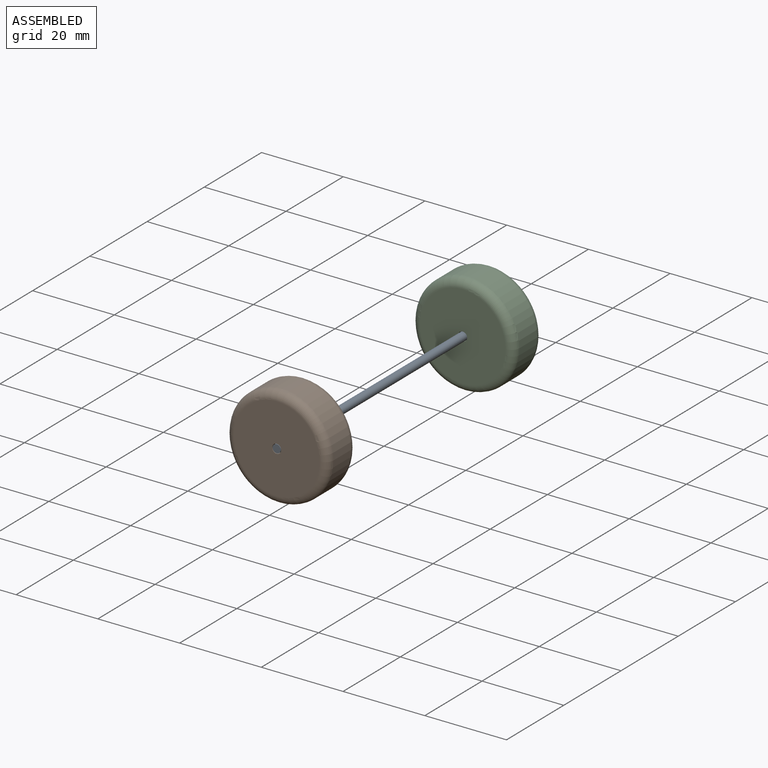
[diagram: assembled view]
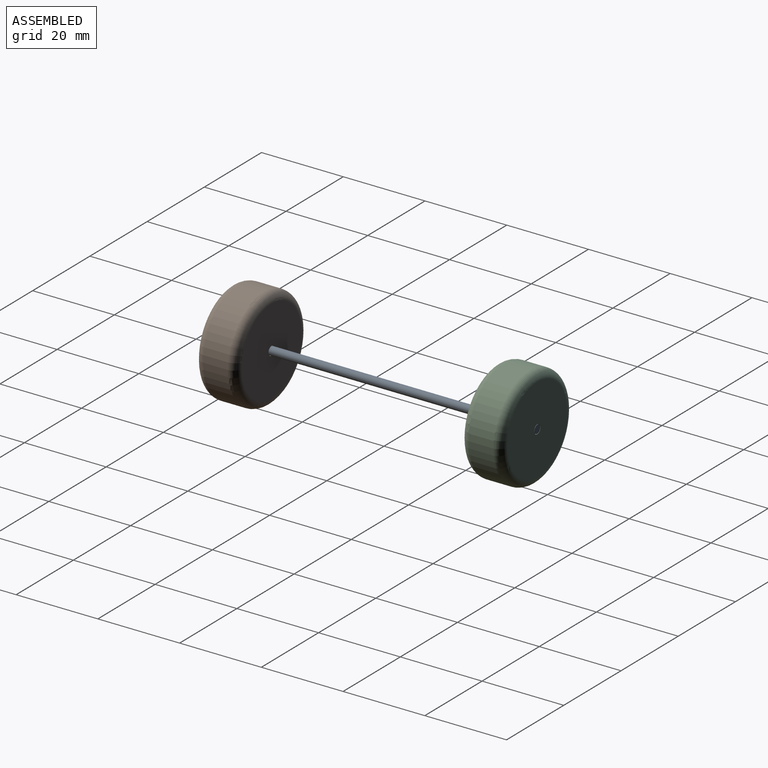
[diagram: assembled view, second angle]
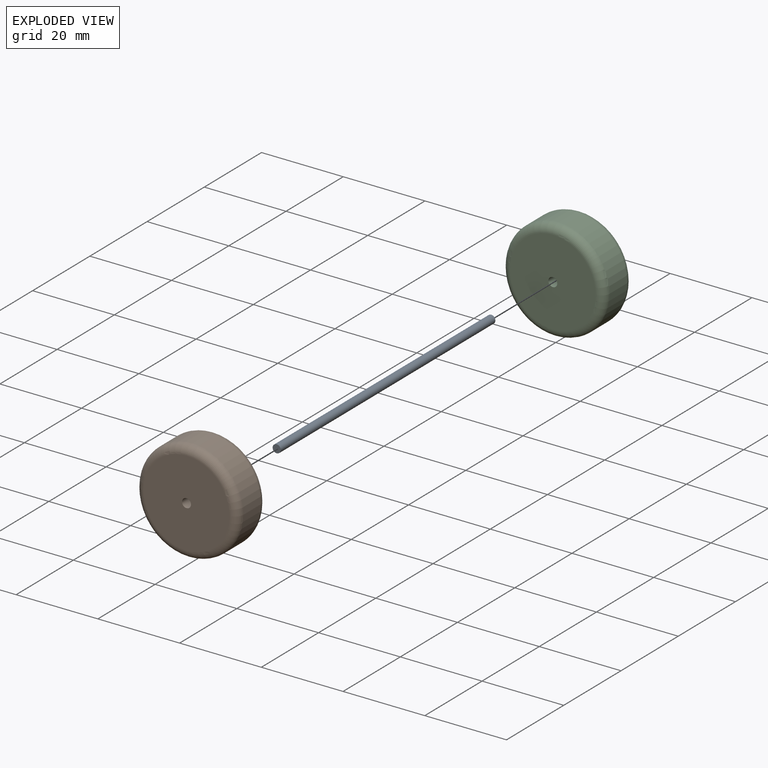
[diagram: exploded view]
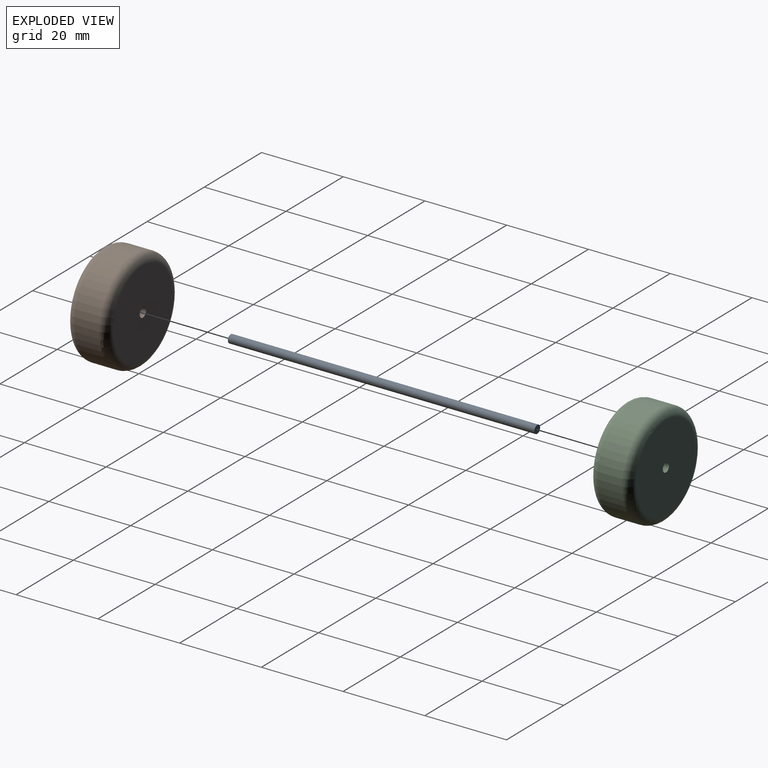
[diagram: exploded view, second angle]
ASSEMBLY  parts=3 mates=2
PART A: 3 faces, bbox 2x75x2 mm
  f0: cylinder r=1mm len=75mm, axis (0,1,0), area 471.2mm2, adj f1,f2
  f1: plane 2x2mm, normal (0,-1,0), area 3.1mm2, adj f0
  f2: plane 2x2mm, normal (0,1,0), area 3.1mm2, adj f0
PART B: 6 faces, bbox 27.1x27.1x10 mm
  f0: cylinder r=1.1mm len=10mm, axis (0,0,-1), area 69.1mm2, adj f2,f3
  f1: cylinder r=12.5mm len=25mm, axis (0,0,-1), area 471.2mm2, adj f4,f5
  f2: plane 21x21mm, normal (0,0,1), area 342.6mm2, adj f0,f5
  f3: plane 21x21mm, normal (0,0,-1), area 342.6mm2, adj f0,f4
  f4: torus R=10.5mm, axis (0,0,1), area 232.4mm2, adj f1,f3
  f5: torus R=10.5mm, axis (0,0,1), area 232.4mm2, adj f1,f2
PART C: same geometry as B
PLACE A at identity
PLACE B rot(axis=(1,0,0),90deg) t=(0,-27.5,0)mm
PLACE C rot(axis=(-1,0,0),90deg) t=(0,27.5,0)mm
MATE fastened B.f0 <-> A.f0  axis (0,-1,0) through (0,-37.5,0)mm
MATE fastened C.f0 <-> A.f0  axis (0,1,0) through (0,37.5,0)mm
